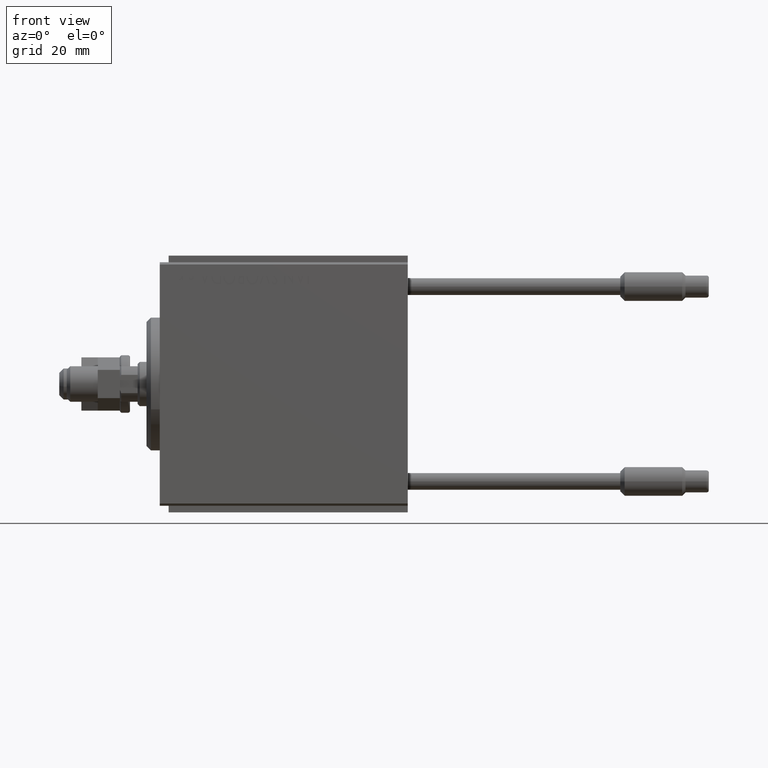
[diagram: clean part render]
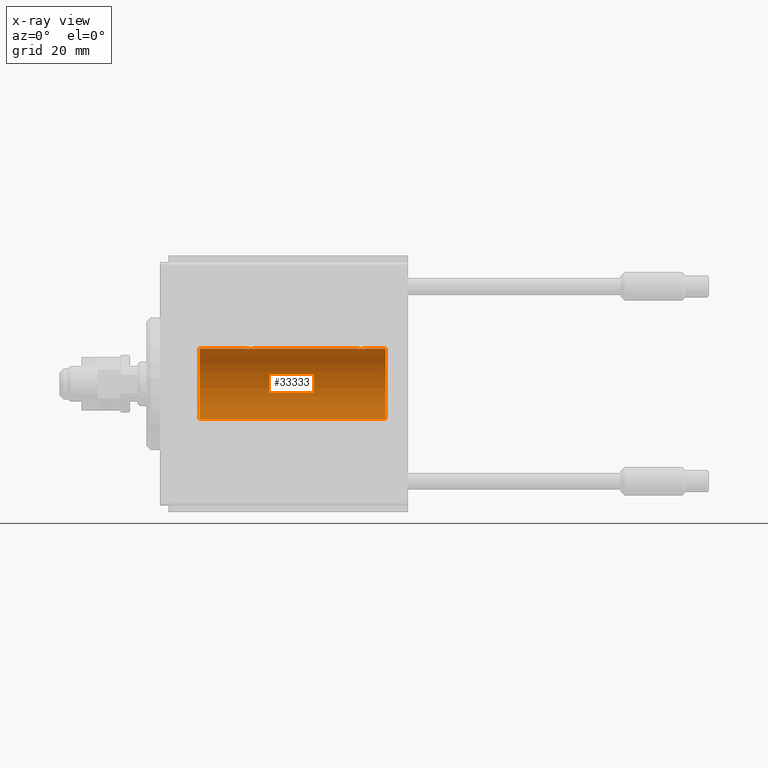
[diagram: x-ray — body ghosted, one internal face saturated and labeled with its STEP entity id]
A machine part, front view, then the same camera in x-ray: the body is ghosted and one INTERNAL B-rep face — a face not visible from any outside direction — is saturated and labeled: STEP entity #33333.
In plain terms, the highlighted cylindrical surface (edge-blend (fillet) strip) has radius 8 mm, axis along (-1, -0, -0).
Its self-contained STEP definition (entity closure, byte-faithful):
#374 = CARTESIAN_POINT ( 'NONE',  ( 44.24999999999999289, 0.08164616652084523418, 7.999999999999998224 ) ) ;
#454 = DIRECTION ( 'NONE',  ( 0.000000000000000000, 0.000000000000000000, 1.000000000000000000 ) ) ;
#630 = CARTESIAN_POINT ( 'NONE',  ( 44.31391055412279201, 0.4029817482954564656, 7.990203133273721114 ) ) ;
#2602 = DIRECTION ( 'NONE',  ( -1.000000000000000000, -0.000000000000000000, -0.000000000000000000 ) ) ;
#2800 = CARTESIAN_POINT ( 'NONE',  ( 21.26853298044905571, 0.9991832710565865527, 7.938201675418737224 ) ) ;
#3066 = CARTESIAN_POINT ( 'NONE',  ( 19.31391055412277424, 0.4029817482954556884, 7.990203133273724667 ) ) ;
#4762 = CARTESIAN_POINT ( 'NONE',  ( 45.09742586614095217, 1.186236229830388567, 7.911627449023366232 ) ) ;
#5007 = CARTESIAN_POINT ( 'NONE',  ( 45.33582908309688975, 1.241868426634442413, 7.903038949453013551 ) ) ;
#6112 = B_SPLINE_CURVE_WITH_KNOTS ( 'NONE', 3,
 ( #18059, #18833, #26076, #49852, #37928, #2800, #42339, #30963, #30452, #34311, #10827, #7220, #10574, #22968, #42078, #38712, #6689, #3066, #38966, #49599, #6437, #50119 ),
 .UNSPECIFIED., .F., .F.,
 ( 4, 2, 2, 2, 2, 2, 2, 2, 2, 2, 4 ),
 ( 4.329924337411337939E-19, 0.0004892585179631286701, 0.0009785170359262569065, 0.001467775553889385251, 0.001957034071852513379, 0.002201663330834072348, 0.002446292589815630882, 0.002935551107778739278, 0.003424809625741846806, 0.003669438884723403172, 0.003914068143704958237 ),
 .UNSPECIFIED. ) ;
#6437 = CARTESIAN_POINT ( 'NONE',  ( 19.25000000000000355, 0.08164616652084567827, 7.999999999999998224 ) ) ;
#6498 = CARTESIAN_POINT ( 'NONE',  ( 51.00000000000000000, 9.797174393178823685E-16, -7.999999999999998224 ) ) ;
#6672 = VERTEX_POINT ( 'NONE', #41959 ) ;
#6689 = CARTESIAN_POINT ( 'NONE',  ( 19.40795032378956009, 0.6298709050361928075, 7.976604806854521001 ) ) ;
#7220 = CARTESIAN_POINT ( 'NONE',  ( 20.17540961683119960, 1.209888574283869422, 7.907997942808293601 ) ) ;
#7730 = ORIENTED_EDGE ( 'NONE', *, *, #15649, .T. ) ;
#7808 = CARTESIAN_POINT ( 'NONE',  ( 51.00000000000000000, 0.000000000000000000, 7.999999999999998224 ) ) ;
#7934 = VERTEX_POINT ( 'NONE', #13211 ) ;
#8140 = ORIENTED_EDGE ( 'NONE', *, *, #25899, .T. ) ;
#8649 = CARTESIAN_POINT ( 'NONE',  ( 45.41880150506445091, 1.250030652953402210, 7.901735465557269578 ) ) ;
#10182 = ORIENTED_EDGE ( 'NONE', *, *, #15161, .F. ) ;
#10440 = DIRECTION ( 'NONE',  ( -1.000000000000000000, -0.000000000000000000, -0.000000000000000000 ) ) ;
#10574 = CARTESIAN_POINT ( 'NONE',  ( 20.09742586614092730, 1.186236229830391009, 7.911627449023368008 ) ) ;
#10586 = VERTEX_POINT ( 'NONE', #15358 ) ;
#10827 = CARTESIAN_POINT ( 'NONE',  ( 20.33582908309688264, 1.241868426634445299, 7.903038949453011774 ) ) ;
#12518 = CARTESIAN_POINT ( 'NONE',  ( 46.59173022154698174, 0.6304521543648616833, 7.976560245937300841 ) ) ;
#12823 = CIRCLE ( 'NONE', #32608, 7.999999999999998224 ) ;
#13211 = CARTESIAN_POINT ( 'NONE',  ( 46.75000000000000000, 4.808978017572389289E-16, 7.999999999999998224 ) ) ;
#13804 = CARTESIAN_POINT ( 'NONE',  ( 51.00000000000000000, 0.000000000000000000, 7.999999999999998224 ) ) ;
#14124 = CARTESIAN_POINT ( 'NONE',  ( 44.25000000000000000, -4.052102368803510290E-23, 7.999999999999998224 ) ) ;
#14152 = CARTESIAN_POINT ( 'NONE',  ( 51.00000000000000000, 0.000000000000000000, 0.000000000000000000 ) ) ;
#14664 = DIRECTION ( 'NONE',  ( -1.000000000000000000, 0.000000000000000000, 0.000000000000000000 ) ) ;
#15161 = EDGE_CURVE ( 'NONE', #32871, #6672, #33957, .T. ) ;
#15358 = CARTESIAN_POINT ( 'NONE',  ( 9.000000000000001776, 9.797174393178823685E-16, -7.999999999999998224 ) ) ;
#15649 = EDGE_CURVE ( 'NONE', #7934, #23026, #17964, .T. ) ;
#16140 = CARTESIAN_POINT ( 'NONE',  ( 45.82849869077220717, 1.217000984963201304, 7.907141142849008375 ) ) ;
#17964 = B_SPLINE_CURVE_WITH_KNOTS ( 'NONE', 3,
 ( #18733, #22866, #38613, #12518, #28278, #47426, #39651, #16140, #36264, #8649, #5007, #28780, #4762, #48182, #21027, #20532, #35755, #630, #32635, #39906, #374, #24408 ),
 .UNSPECIFIED., .F., .F.,
 ( 4, 2, 2, 2, 2, 2, 2, 2, 2, 2, 4 ),
 ( 4.672339112836879896E-19, 0.0004892585179631255259, 0.0009785170359262506182, 0.001467775553889375710, 0.001957034071852500803, 0.002201663330834063240, 0.002446292589815625678, 0.002935551107778731472, 0.003424809625741836831, 0.003669438884723394065, 0.003914068143704951298 ),
 .UNSPECIFIED. ) ;
#18059 = CARTESIAN_POINT ( 'NONE',  ( 21.75000000000000355, -4.456549589723607084E-16, 7.999999999999998224 ) ) ;
#18189 = LINE ( 'NONE', #41960, #50719 ) ;
#18733 = CARTESIAN_POINT ( 'NONE',  ( 46.75000000000000000, 4.808978017572389289E-16, 7.999999999999998224 ) ) ;
#18833 = CARTESIAN_POINT ( 'NONE',  ( 21.75000000000000355, 0.1654536524218028770, 7.999999999999998224 ) ) ;
#19345 = ORIENTED_EDGE ( 'NONE', *, *, #21876, .T. ) ;
#20532 = CARTESIAN_POINT ( 'NONE',  ( 44.49968017762932959, 0.7674545364220043409, 7.963965305651047544 ) ) ;
#20604 = CARTESIAN_POINT ( 'NONE',  ( 51.00000000000000000, 0.000000000000000000, 0.000000000000000000 ) ) ;
#21027 = CARTESIAN_POINT ( 'NONE',  ( 44.73260908389369916, 1.000368629246203511, 7.938072339095200824 ) ) ;
#21499 = ORIENTED_EDGE ( 'NONE', *, *, #41225, .F. ) ;
#21710 = VECTOR ( 'NONE', #2602, 1000.000000000000000 ) ;
#21876 = EDGE_CURVE ( 'NONE', #22531, #33343, #18189, .T. ) ;
#22070 = DIRECTION ( 'NONE',  ( -1.000000000000000000, -0.000000000000000000, -0.000000000000000000 ) ) ;
#22253 = LINE ( 'NONE', #6498, #21710 ) ;
#22531 = VERTEX_POINT ( 'NONE', #42077 ) ;
#22866 = CARTESIAN_POINT ( 'NONE',  ( 46.75000000000000711, 0.1654536524218027105, 7.999999999999998224 ) ) ;
#22968 = CARTESIAN_POINT ( 'NONE',  ( 19.87017729360626106, 1.092113850918999596, 7.925358570881163800 ) ) ;
#23026 = VERTEX_POINT ( 'NONE', #14124 ) ;
#23558 = CARTESIAN_POINT ( 'NONE',  ( 21.75000000000000355, -4.456549589723607084E-16, 7.999999999999998224 ) ) ;
#23947 = EDGE_LOOP ( 'NONE', ( #21499, #10182, #40264, #7730, #8140, #50320, #19345, #39800 ) ) ;
#24408 = CARTESIAN_POINT ( 'NONE',  ( 44.25000000000000000, -4.052102368803510290E-23, 7.999999999999998224 ) ) ;
#25899 = EDGE_CURVE ( 'NONE', #23026, #49916, #46822, .T. ) ;
#26076 = CARTESIAN_POINT ( 'NONE',  ( 21.71733208341543886, 0.3277916934117526826, 7.994719249713583942 ) ) ;
#28278 = CARTESIAN_POINT ( 'NONE',  ( 46.49884501198090447, 0.7689725568822857182, 7.963798983873341619 ) ) ;
#28353 = CYLINDRICAL_SURFACE ( 'NONE', #36178, 7.999999999999998224 ) ;
#28780 = CARTESIAN_POINT ( 'NONE',  ( 45.17540961683120315, 1.209888574283866314, 7.907997942808293601 ) ) ;
#29048 = LINE ( 'NONE', #13804, #35049 ) ;
#30452 = CARTESIAN_POINT ( 'NONE',  ( 20.66380854908764064, 1.249938428426576875, 7.901750054830715797 ) ) ;
#30963 = CARTESIAN_POINT ( 'NONE',  ( 20.82849869077221427, 1.217000984963206411, 7.907141142849008375 ) ) ;
#32462 = DIRECTION ( 'NONE',  ( -1.000000000000000000, -0.000000000000000000, -0.000000000000000000 ) ) ;
#32608 = AXIS2_PLACEMENT_3D ( 'NONE', #33726, #49531, #45897 ) ;
#32635 = CARTESIAN_POINT ( 'NONE',  ( 44.29023349479908234, 0.3250523954932718618, 7.993796610540221614 ) ) ;
#32717 = FACE_OUTER_BOUND ( 'NONE', #23947, .T. ) ;
#32871 = VERTEX_POINT ( 'NONE', #36777 ) ;
#33333 = ADVANCED_FACE ( 'NONE', ( #32717 ), #28353, .F. ) ;
#33343 = VERTEX_POINT ( 'NONE', #48263 ) ;
#33726 = CARTESIAN_POINT ( 'NONE',  ( 9.000000000000001776, 0.000000000000000000, 0.000000000000000000 ) ) ;
#33957 = CIRCLE ( 'NONE', #39753, 7.999999999999998224 ) ;
#34203 = VECTOR ( 'NONE', #50196, 1000.000000000000000 ) ;
#34311 = CARTESIAN_POINT ( 'NONE',  ( 20.41880150506445091, 1.250030652953405985, 7.901735465557267801 ) ) ;
#35049 = VECTOR ( 'NONE', #10440, 1000.000000000000000 ) ;
#35265 = EDGE_CURVE ( 'NONE', #49916, #22531, #6112, .T. ) ;
#35755 = CARTESIAN_POINT ( 'NONE',  ( 44.40795032378956364, 0.6298709050361924744, 7.976604806854521001 ) ) ;
#36178 = AXIS2_PLACEMENT_3D ( 'NONE', #20604, #32462, #454 ) ;
#36264 = CARTESIAN_POINT ( 'NONE',  ( 45.66380854908761933, 1.249938428426573989, 7.901750054830717573 ) ) ;
#36777 = CARTESIAN_POINT ( 'NONE',  ( 51.00000000000000000, 0.000000000000000000, 7.999999999999998224 ) ) ;
#37928 = CARTESIAN_POINT ( 'NONE',  ( 21.49884501198091868, 0.7689725568822877166, 7.963798983873343396 ) ) ;
#38613 = CARTESIAN_POINT ( 'NONE',  ( 46.71733208341542820, 0.3277916934117504622, 7.994719249713583942 ) ) ;
#38712 = CARTESIAN_POINT ( 'NONE',  ( 19.49968017762932604, 0.7674545364220058952, 7.963965305651045767 ) ) ;
#38966 = CARTESIAN_POINT ( 'NONE',  ( 19.29023349479908234, 0.3250523954932723059, 7.993796610540221614 ) ) ;
#39651 = CARTESIAN_POINT ( 'NONE',  ( 46.12925165703737207, 1.092266057037467597, 7.925334523600929160 ) ) ;
#39753 = AXIS2_PLACEMENT_3D ( 'NONE', #14152, #14664, #45679 ) ;
#39800 = ORIENTED_EDGE ( 'NONE', *, *, #49601, .T. ) ;
#39906 = CARTESIAN_POINT ( 'NONE',  ( 44.25818474107592237, 0.1645871186493920446, 7.998709545350109806 ) ) ;
#40264 = ORIENTED_EDGE ( 'NONE', *, *, #45258, .T. ) ;
#41225 = EDGE_CURVE ( 'NONE', #6672, #10586, #22253, .T. ) ;
#41959 = CARTESIAN_POINT ( 'NONE',  ( 51.00000000000000000, 9.797174393178823685E-16, -7.999999999999998224 ) ) ;
#41960 = CARTESIAN_POINT ( 'NONE',  ( 51.00000000000000000, 0.000000000000000000, 7.999999999999998224 ) ) ;
#42077 = CARTESIAN_POINT ( 'NONE',  ( 19.25000000000000000, -4.052062925758249240E-23, 7.999999999999998224 ) ) ;
#42078 = CARTESIAN_POINT ( 'NONE',  ( 19.73260908389369916, 1.000368629246206842, 7.938072339095200824 ) ) ;
#42339 = CARTESIAN_POINT ( 'NONE',  ( 21.12925165703738628, 1.092266057037472926, 7.925334523600930936 ) ) ;
#45258 = EDGE_CURVE ( 'NONE', #32871, #7934, #29048, .T. ) ;
#45679 = DIRECTION ( 'NONE',  ( 0.000000000000000000, 0.000000000000000000, 1.000000000000000000 ) ) ;
#45897 = DIRECTION ( 'NONE',  ( 0.000000000000000000, 0.000000000000000000, 1.000000000000000000 ) ) ;
#46822 = LINE ( 'NONE', #7808, #34203 ) ;
#47426 = CARTESIAN_POINT ( 'NONE',  ( 46.26853298044904506, 0.9991832710565838882, 7.938201675418737224 ) ) ;
#48182 = CARTESIAN_POINT ( 'NONE',  ( 44.87017729360625395, 1.092113850918997375, 7.925358570881165576 ) ) ;
#48263 = CARTESIAN_POINT ( 'NONE',  ( 9.000000000000001776, 0.000000000000000000, 7.999999999999998224 ) ) ;
#49531 = DIRECTION ( 'NONE',  ( -1.000000000000000000, 0.000000000000000000, 0.000000000000000000 ) ) ;
#49599 = CARTESIAN_POINT ( 'NONE',  ( 19.25818474107593303, 0.1645871186493919058, 7.998709545350109806 ) ) ;
#49601 = EDGE_CURVE ( 'NONE', #33343, #10586, #12823, .T. ) ;
#49852 = CARTESIAN_POINT ( 'NONE',  ( 21.59173022154697819, 0.6304521543648646809, 7.976560245937302618 ) ) ;
#49916 = VERTEX_POINT ( 'NONE', #23558 ) ;
#50119 = CARTESIAN_POINT ( 'NONE',  ( 19.25000000000000000, -4.052062925758249240E-23, 7.999999999999998224 ) ) ;
#50196 = DIRECTION ( 'NONE',  ( -1.000000000000000000, -0.000000000000000000, -0.000000000000000000 ) ) ;
#50320 = ORIENTED_EDGE ( 'NONE', *, *, #35265, .T. ) ;
#50719 = VECTOR ( 'NONE', #22070, 1000.000000000000000 ) ;